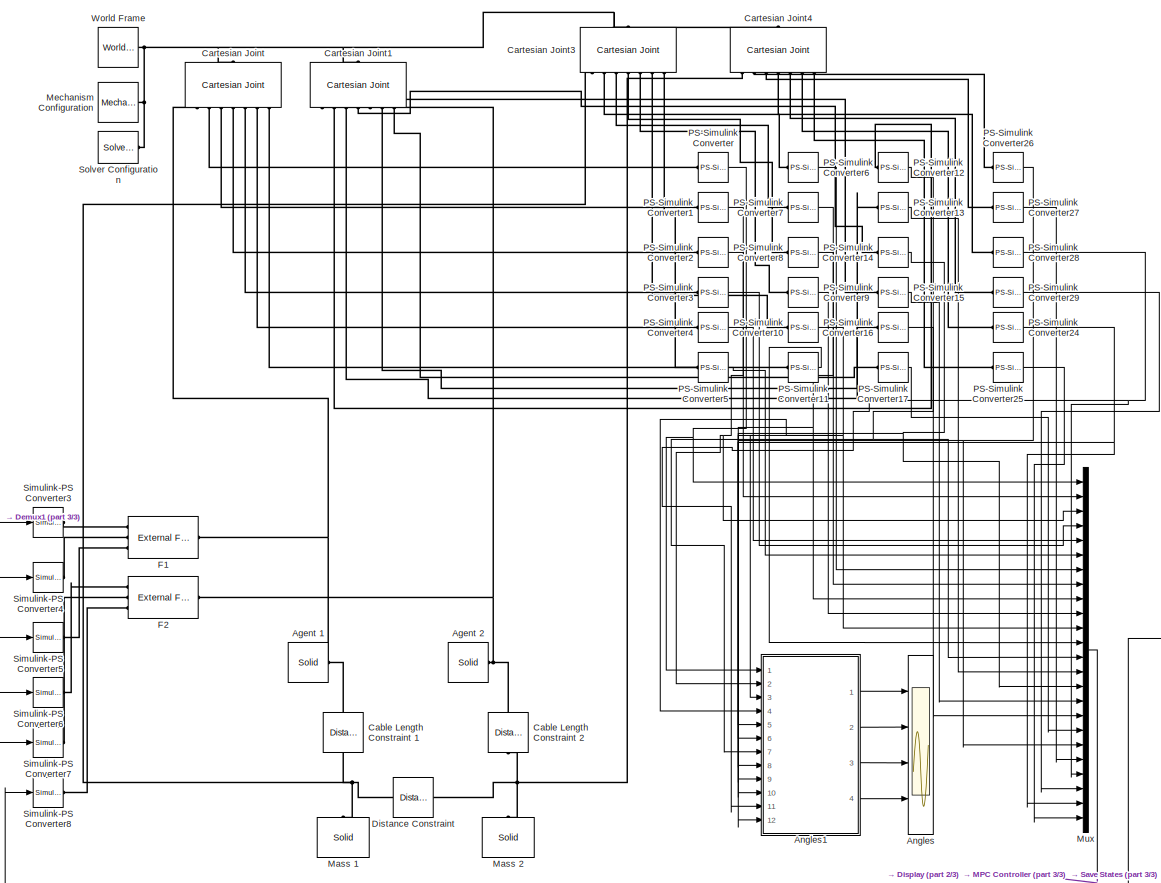
[diagram: root canvas - part 1/3, full width, middle band]
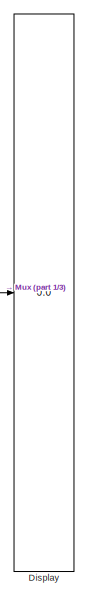
[diagram: root canvas - part 2/3, bottom right region]
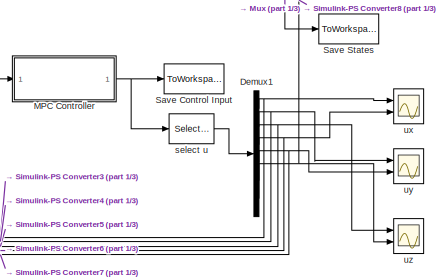
[diagram: root canvas - part 3/3, bottom center region]
MODEL slx_ee58ca1a40c8
KIND model
CONFIG AbsTol = auto
CONFIG EnableMultiTasking = on
CONFIG FixedStep = auto
CONFIG InitFcn = initSim;
CONFIG MaxStep = auto
CONFIG MinStep = auto
CONFIG RelTol = 1e-3
CONFIG SampleTimeConstraint = Unconstrained
CONFIG Solver = ode23t
CONFIG SolverName = ode23t
CONFIG StartTime = 0.0
CONFIG StopFcn = plotSimSolution;
CONFIG StopTime = 5
BLOCK [Reference] Agent 1  REF=sm_lib/Body Elements/Solid
  Ports = [0, 0, 0, 0, 0, 1]
  SourceBlock = sm_lib/Body Elements/Solid
  SourceProductBaseCode = MS
  SourceProductName = Simscape Multibody
  SourceType = Solid
BLOCK [Reference] Agent 2  REF=sm_lib/Body Elements/Solid
  Ports = [0, 0, 0, 0, 0, 1]
  SourceBlock = sm_lib/Body Elements/Solid
  SourceProductBaseCode = MS
  SourceProductName = Simscape Multibody
  SourceType = Solid
BLOCK [Scope] Angles
  NumInputPorts = 4
  Ports = [4]
  ScopeSpecificationString = Simulink.scopes.TimeScopeBlockCfg('CurrentConfiguration', extmgr.ConfigurationSet(extmgr.Configuration('Core','General UI',true),extmgr.Configuration('Core','Source UI',true),extmgr.Configuration('Sources','WiredSimulink',true,'DataLoggingVariableName','ScopeData4'),extmgr.Configuration('Visuals','Time Domain',true,'SerializedDisplays',{struct('MinYLimReal','-0.00000000000000042','MaxYLimReal','0....<+1512ch>
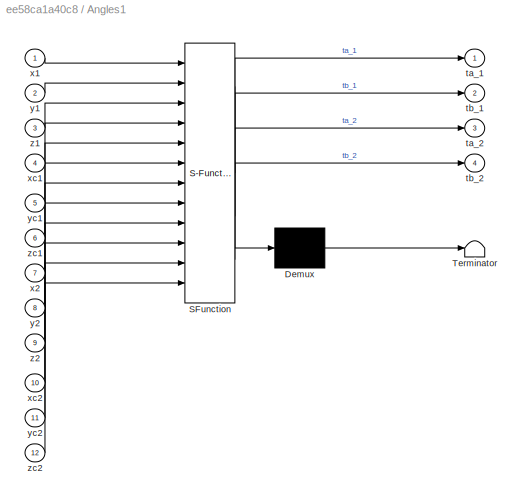
BLOCK [SubSystem] Angles1
  ErrorFcn = Stateflow.Translate.translate
  PermitHierarchicalResolution = ExplicitOnly
  Ports = [12, 4]
  RequestExecContextInheritance = off
  SFBlockType = MATLAB Function
  TreatAsAtomicUnit = on
  Variant = off
BLOCK [Demux] Angles1/ Demux 
  Outputs = 1
  Ports = [1, 1]
BLOCK [S-Function] Angles1/ SFunction 
  EnableBusSupport = on
  FunctionName = sf_sfun
  PortCounts = [12 5]
  Ports = [12, 5]
  SFcnIsStateOwnerBlock = off
  SFunctionDeploymentMode = off
  Tag = Stateflow S-Function MultiAgentMechanical2 1
BLOCK [Terminator] Angles1/ Terminator 
BLOCK [Outport] Angles1/ta_1
  IconDisplay = Port number
BLOCK [Outport] Angles1/ta_2
  IconDisplay = Port number
  Port = 3
BLOCK [Outport] Angles1/tb_1
  IconDisplay = Port number
  Port = 2
BLOCK [Outport] Angles1/tb_2
  IconDisplay = Port number
  Port = 4
BLOCK [Inport] Angles1/x1
  IconDisplay = Port number
BLOCK [Inport] Angles1/x2
  IconDisplay = Port number
  Port = 7
BLOCK [Inport] Angles1/xc1
  IconDisplay = Port number
  Port = 4
BLOCK [Inport] Angles1/xc2
  IconDisplay = Port number
  Port = 10
BLOCK [Inport] Angles1/y1
  IconDisplay = Port number
  Port = 2
BLOCK [Inport] Angles1/y2
  IconDisplay = Port number
  Port = 8
BLOCK [Inport] Angles1/yc1
  IconDisplay = Port number
  Port = 5
BLOCK [Inport] Angles1/yc2
  IconDisplay = Port number
  Port = 11
BLOCK [Inport] Angles1/z1
  IconDisplay = Port number
  Port = 3
BLOCK [Inport] Angles1/z2
  IconDisplay = Port number
  Port = 9
BLOCK [Inport] Angles1/zc1
  IconDisplay = Port number
  Port = 6
BLOCK [Inport] Angles1/zc2
  IconDisplay = Port number
  Port = 12
BLOCK [Reference] Cable Length Constraint 1  REF=sm_lib/Constraints/Distance
Constraint
  Ports = [0, 0, 0, 0, 0, 1, 1]
  SourceBlock = sm_lib/Constraints/Distance\nConstraint
  SourceProductBaseCode = MS
  SourceProductName = Simscape Multibody
  SourceType = Distance\nConstraint
BLOCK [Reference] Cable Length Constraint 2  REF=sm_lib/Constraints/Distance
Constraint
  Ports = [0, 0, 0, 0, 0, 1, 1]
  SourceBlock = sm_lib/Constraints/Distance\nConstraint
  SourceProductBaseCode = MS
  SourceProductName = Simscape Multibody
  SourceType = Distance\nConstraint
BLOCK [Reference] Cartesian Joint  REF=sm_lib/Joints/Cartesian
Joint
  Ports = [0, 0, 0, 0, 0, 1, 7]
  SourceBlock = sm_lib/Joints/Cartesian\nJoint
  SourceProductBaseCode = MS
  SourceProductName = Simscape Multibody
  SourceType = Cartesian\nJoint
BLOCK [Reference] Cartesian Joint1  REF=sm_lib/Joints/Cartesian
Joint
  Ports = [0, 0, 0, 0, 0, 1, 7]
  SourceBlock = sm_lib/Joints/Cartesian\nJoint
  SourceProductBaseCode = MS
  SourceProductName = Simscape Multibody
  SourceType = Cartesian\nJoint
BLOCK [Reference] Cartesian Joint3  REF=sm_lib/Joints/Cartesian
Joint
  Ports = [0, 0, 0, 0, 0, 1, 7]
  SourceBlock = sm_lib/Joints/Cartesian\nJoint
  SourceProductBaseCode = MS
  SourceProductName = Simscape Multibody
  SourceType = Cartesian\nJoint
BLOCK [Reference] Cartesian Joint4  REF=sm_lib/Joints/Cartesian
Joint
  Ports = [0, 0, 0, 0, 0, 1, 7]
  SourceBlock = sm_lib/Joints/Cartesian\nJoint
  SourceProductBaseCode = MS
  SourceProductName = Simscape Multibody
  SourceType = Cartesian\nJoint
BLOCK [Demux] Demux1
  DisplayOption = bar
  Outputs = 6
  Ports = [1, 6]
BLOCK [Display] Display
  Decimation = 1
  Ports = [1]
BLOCK [Reference] Distance Constraint  REF=sm_lib/Constraints/Distance
Constraint
  Ports = [0, 0, 0, 0, 0, 1, 1]
  SourceBlock = sm_lib/Constraints/Distance\nConstraint
  SourceProductBaseCode = MS
  SourceProductName = Simscape Multibody
  SourceType = Distance\nConstraint
BLOCK [Reference] F1  REF=sm_lib/Forces and
Torques/External Force
and Torque
  Ports = [0, 0, 0, 0, 0, 3, 1]
  SourceBlock = sm_lib/Forces and\nTorques/External Force\nand Torque
  SourceProductBaseCode = MS
  SourceProductName = Simscape Multibody
  SourceType = External Force\nand Torque
BLOCK [Reference] F2  REF=sm_lib/Forces and
Torques/External Force
and Torque
  Ports = [0, 0, 0, 0, 0, 3, 1]
  SourceBlock = sm_lib/Forces and\nTorques/External Force\nand Torque
  SourceProductBaseCode = MS
  SourceProductName = Simscape Multibody
  SourceType = External Force\nand Torque
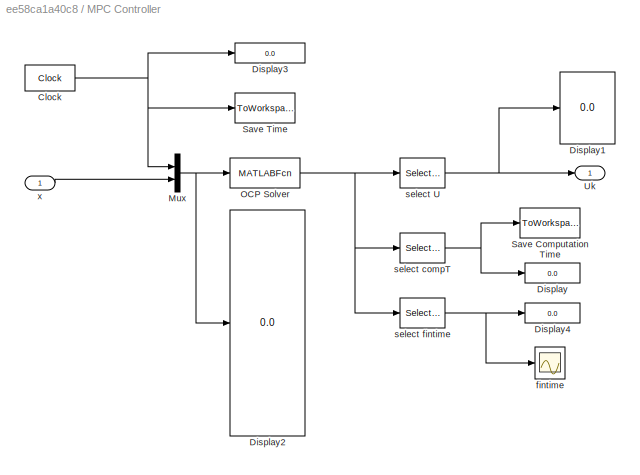
BLOCK [SubSystem] MPC Controller 
  Ports = [1, 1]
  RequestExecContextInheritance = off
  Variant = off
BLOCK [Clock] MPC Controller /Clock
  DisplayTime = on
BLOCK [Display] MPC Controller /Display
  Decimation = 1
  Ports = [1]
BLOCK [Display] MPC Controller /Display1
  Decimation = 1
  Ports = [1]
BLOCK [Display] MPC Controller /Display2
  Decimation = 1
  Ports = [1]
BLOCK [Display] MPC Controller /Display3
  Decimation = 1
  Ports = [1]
BLOCK [Display] MPC Controller /Display4
  Decimation = 1
  Ports = [1]
BLOCK [Mux] MPC Controller /Mux
  DisplayOption = bar
  Inputs = 2
  Ports = [2, 1]
BLOCK [MATLABFcn] MPC Controller /OCP Solver
  MATLABFcn = MAGSolver
  OutputDimensions = m+2
  Ports = [1, 1]
BLOCK [ToWorkspace] MPC Controller /Save Computation Time 
  FixptAsFi = on
  MaxDataPoints = inf
  Ports = [1]
  SampleTime = tstep
  Save2DSignal = 2-D array (concatenate along first dimension)
  VariableName = Comp_Time
BLOCK [ToWorkspace] MPC Controller /Save Time
  FixptAsFi = on
  MaxDataPoints = inf
  Ports = [1]
  SampleTime = -1
  Save2DSignal = 2-D array (concatenate along first dimension)
  VariableName = T
BLOCK [Outport] MPC Controller /Uk
  IconDisplay = Port number
BLOCK [Scope] MPC Controller /fintime
  NumInputPorts = 1
  Ports = [1]
  ScopeSpecificationString = Simulink.scopes.TimeScopeBlockCfg('CurrentConfiguration', extmgr.ConfigurationSet(extmgr.Configuration('Core','General UI',true),extmgr.Configuration('Core','Source UI',true),extmgr.Configuration('Sources','WiredSimulink',true,'DataLoggingVariableName','ScopeData1'),extmgr.Configuration('Visuals','Time Domain',true),extmgr.Configuration('Tools','Plot Navigation',true),extmgr.Configuration('Tools',...<+40ch>
BLOCK [Selector] MPC Controller /select U
  IndexOptions = Index vector (dialog)
  Indices = 3:m+2
  OutputSizes = 1
  Ports = [1, 1]
BLOCK [Selector] MPC Controller /select compT
  IndexOptions = Index vector (dialog)
  Indices = 2
  OutputSizes = 1
  Ports = [1, 1]
BLOCK [Selector] MPC Controller /select fintime
  IndexOptions = Index vector (dialog)
  Indices = 1
  OutputSizes = 1
  Ports = [1, 1]
BLOCK [Inport] MPC Controller /x
  IconDisplay = Port number
BLOCK [Reference] Mass 1  REF=sm_lib/Body Elements/Solid
  Ports = [0, 0, 0, 0, 0, 1]
  SourceBlock = sm_lib/Body Elements/Solid
  SourceProductBaseCode = MS
  SourceProductName = Simscape Multibody
  SourceType = Solid
BLOCK [Reference] Mass 2  REF=sm_lib/Body Elements/Solid
  Ports = [0, 0, 0, 0, 0, 1]
  SourceBlock = sm_lib/Body Elements/Solid
  SourceProductBaseCode = MS
  SourceProductName = Simscape Multibody
  SourceType = Solid
BLOCK [Reference] Mechanism Configuration  REF=sm_lib/Utilities/Mechanism
Configuration
  Ports = [0, 0, 0, 0, 0, 0, 1]
  SourceBlock = sm_lib/Utilities/Mechanism\nConfiguration
  SourceProductBaseCode = MS
  SourceProductName = Simscape Multibody
  SourceType = Mechanism\nConfiguration
BLOCK [Mux] Mux
  DisplayOption = bar
  Inputs = 24
  Ports = [24, 1]
BLOCK [Reference] PS-Simulink Converter  REF=nesl_utility/PS-Simulink
Converter
  Ports = [0, 1, 0, 0, 0, 1]
  SourceBlock = nesl_utility/PS-Simulink\nConverter
  SourceProductBaseCode = SS
  SourceProductName = Simscape
  SourceType = PS-Simulink\nConverter
BLOCK [Reference] PS-Simulink Converter1  REF=nesl_utility/PS-Simulink
Converter
  Ports = [0, 1, 0, 0, 0, 1]
  SourceBlock = nesl_utility/PS-Simulink\nConverter
  SourceProductBaseCode = SS
  SourceProductName = Simscape
  SourceType = PS-Simulink\nConverter
BLOCK [Reference] PS-Simulink Converter10  REF=nesl_utility/PS-Simulink
Converter
  Ports = [0, 1, 0, 0, 0, 1]
  SourceBlock = nesl_utility/PS-Simulink\nConverter
  SourceProductBaseCode = SS
  SourceProductName = Simscape
  SourceType = PS-Simulink\nConverter
BLOCK [Reference] PS-Simulink Converter11  REF=nesl_utility/PS-Simulink
Converter
  Ports = [0, 1, 0, 0, 0, 1]
  SourceBlock = nesl_utility/PS-Simulink\nConverter
  SourceProductBaseCode = SS
  SourceProductName = Simscape
  SourceType = PS-Simulink\nConverter
BLOCK [Reference] PS-Simulink Converter12  REF=nesl_utility/PS-Simulink
Converter
  Ports = [0, 1, 0, 0, 0, 1]
  SourceBlock = nesl_utility/PS-Simulink\nConverter
  SourceProductBaseCode = SS
  SourceProductName = Simscape
  SourceType = PS-Simulink\nConverter
BLOCK [Reference] PS-Simulink Converter13  REF=nesl_utility/PS-Simulink
Converter
  Ports = [0, 1, 0, 0, 0, 1]
  SourceBlock = nesl_utility/PS-Simulink\nConverter
  SourceProductBaseCode = SS
  SourceProductName = Simscape
  SourceType = PS-Simulink\nConverter
BLOCK [Reference] PS-Simulink Converter14  REF=nesl_utility/PS-Simulink
Converter
  Ports = [0, 1, 0, 0, 0, 1]
  SourceBlock = nesl_utility/PS-Simulink\nConverter
  SourceProductBaseCode = SS
  SourceProductName = Simscape
  SourceType = PS-Simulink\nConverter
BLOCK [Reference] PS-Simulink Converter15  REF=nesl_utility/PS-Simulink
Converter
  Ports = [0, 1, 0, 0, 0, 1]
  SourceBlock = nesl_utility/PS-Simulink\nConverter
  SourceProductBaseCode = SS
  SourceProductName = Simscape
  SourceType = PS-Simulink\nConverter
BLOCK [Reference] PS-Simulink Converter16  REF=nesl_utility/PS-Simulink
Converter
  Ports = [0, 1, 0, 0, 0, 1]
  SourceBlock = nesl_utility/PS-Simulink\nConverter
  SourceProductBaseCode = SS
  SourceProductName = Simscape
  SourceType = PS-Simulink\nConverter
BLOCK [Reference] PS-Simulink Converter17  REF=nesl_utility/PS-Simulink
Converter
  Ports = [0, 1, 0, 0, 0, 1]
  SourceBlock = nesl_utility/PS-Simulink\nConverter
  SourceProductBaseCode = SS
  SourceProductName = Simscape
  SourceType = PS-Simulink\nConverter
BLOCK [Reference] PS-Simulink Converter2  REF=nesl_utility/PS-Simulink
Converter
  Ports = [0, 1, 0, 0, 0, 1]
  SourceBlock = nesl_utility/PS-Simulink\nConverter
  SourceProductBaseCode = SS
  SourceProductName = Simscape
  SourceType = PS-Simulink\nConverter
BLOCK [Reference] PS-Simulink Converter24  REF=nesl_utility/PS-Simulink
Converter
  Ports = [0, 1, 0, 0, 0, 1]
  SourceBlock = nesl_utility/PS-Simulink\nConverter
  SourceProductBaseCode = SS
  SourceProductName = Simscape
  SourceType = PS-Simulink\nConverter
BLOCK [Reference] PS-Simulink Converter25  REF=nesl_utility/PS-Simulink
Converter
  Ports = [0, 1, 0, 0, 0, 1]
  SourceBlock = nesl_utility/PS-Simulink\nConverter
  SourceProductBaseCode = SS
  SourceProductName = Simscape
  SourceType = PS-Simulink\nConverter
BLOCK [Reference] PS-Simulink Converter26  REF=nesl_utility/PS-Simulink
Converter
  Ports = [0, 1, 0, 0, 0, 1]
  SourceBlock = nesl_utility/PS-Simulink\nConverter
  SourceProductBaseCode = SS
  SourceProductName = Simscape
  SourceType = PS-Simulink\nConverter
BLOCK [Reference] PS-Simulink Converter27  REF=nesl_utility/PS-Simulink
Converter
  Ports = [0, 1, 0, 0, 0, 1]
  SourceBlock = nesl_utility/PS-Simulink\nConverter
  SourceProductBaseCode = SS
  SourceProductName = Simscape
  SourceType = PS-Simulink\nConverter
BLOCK [Reference] PS-Simulink Converter28  REF=nesl_utility/PS-Simulink
Converter
  Ports = [0, 1, 0, 0, 0, 1]
  SourceBlock = nesl_utility/PS-Simulink\nConverter
  SourceProductBaseCode = SS
  SourceProductName = Simscape
  SourceType = PS-Simulink\nConverter
BLOCK [Reference] PS-Simulink Converter29  REF=nesl_utility/PS-Simulink
Converter
  Ports = [0, 1, 0, 0, 0, 1]
  SourceBlock = nesl_utility/PS-Simulink\nConverter
  SourceProductBaseCode = SS
  SourceProductName = Simscape
  SourceType = PS-Simulink\nConverter
BLOCK [Reference] PS-Simulink Converter3  REF=nesl_utility/PS-Simulink
Converter
  Ports = [0, 1, 0, 0, 0, 1]
  SourceBlock = nesl_utility/PS-Simulink\nConverter
  SourceProductBaseCode = SS
  SourceProductName = Simscape
  SourceType = PS-Simulink\nConverter
BLOCK [Reference] PS-Simulink Converter4  REF=nesl_utility/PS-Simulink
Converter
  Ports = [0, 1, 0, 0, 0, 1]
  SourceBlock = nesl_utility/PS-Simulink\nConverter
  SourceProductBaseCode = SS
  SourceProductName = Simscape
  SourceType = PS-Simulink\nConverter
BLOCK [Reference] PS-Simulink Converter5  REF=nesl_utility/PS-Simulink
Converter
  Ports = [0, 1, 0, 0, 0, 1]
  SourceBlock = nesl_utility/PS-Simulink\nConverter
  SourceProductBaseCode = SS
  SourceProductName = Simscape
  SourceType = PS-Simulink\nConverter
BLOCK [Reference] PS-Simulink Converter6  REF=nesl_utility/PS-Simulink
Converter
  Ports = [0, 1, 0, 0, 0, 1]
  SourceBlock = nesl_utility/PS-Simulink\nConverter
  SourceProductBaseCode = SS
  SourceProductName = Simscape
  SourceType = PS-Simulink\nConverter
BLOCK [Reference] PS-Simulink Converter7  REF=nesl_utility/PS-Simulink
Converter
  Ports = [0, 1, 0, 0, 0, 1]
  SourceBlock = nesl_utility/PS-Simulink\nConverter
  SourceProductBaseCode = SS
  SourceProductName = Simscape
  SourceType = PS-Simulink\nConverter
BLOCK [Reference] PS-Simulink Converter8  REF=nesl_utility/PS-Simulink
Converter
  Ports = [0, 1, 0, 0, 0, 1]
  SourceBlock = nesl_utility/PS-Simulink\nConverter
  SourceProductBaseCode = SS
  SourceProductName = Simscape
  SourceType = PS-Simulink\nConverter
BLOCK [Reference] PS-Simulink Converter9  REF=nesl_utility/PS-Simulink
Converter
  Ports = [0, 1, 0, 0, 0, 1]
  SourceBlock = nesl_utility/PS-Simulink\nConverter
  SourceProductBaseCode = SS
  SourceProductName = Simscape
  SourceType = PS-Simulink\nConverter
BLOCK [ToWorkspace] Save Control Input
  FixptAsFi = on
  MaxDataPoints = inf
  Ports = [1]
  SampleTime = -1
  Save2DSignal = 2-D array (concatenate along first dimension)
  VariableName = U
BLOCK [ToWorkspace] Save States
  FixptAsFi = on
  MaxDataPoints = inf
  Ports = [1]
  SampleTime = -1
  Save2DSignal = 3-D array (concatenate along third dimension)
  SaveFormat = Timeseries
  VariableName = X
BLOCK [Reference] Simulink-PS Converter3  REF=nesl_utility/Simulink-PS
Converter
  Ports = [1, 0, 0, 0, 0, 0, 1]
  SourceBlock = nesl_utility/Simulink-PS\nConverter
  SourceProductBaseCode = SS
  SourceProductName = Simscape
  SourceType = Simulink-PS\nConverter
BLOCK [Reference] Simulink-PS Converter4  REF=nesl_utility/Simulink-PS
Converter
  Ports = [1, 0, 0, 0, 0, 0, 1]
  SourceBlock = nesl_utility/Simulink-PS\nConverter
  SourceProductBaseCode = SS
  SourceProductName = Simscape
  SourceType = Simulink-PS\nConverter
BLOCK [Reference] Simulink-PS Converter5  REF=nesl_utility/Simulink-PS
Converter
  Ports = [1, 0, 0, 0, 0, 0, 1]
  SourceBlock = nesl_utility/Simulink-PS\nConverter
  SourceProductBaseCode = SS
  SourceProductName = Simscape
  SourceType = Simulink-PS\nConverter
BLOCK [Reference] Simulink-PS Converter6  REF=nesl_utility/Simulink-PS
Converter
  Ports = [1, 0, 0, 0, 0, 0, 1]
  SourceBlock = nesl_utility/Simulink-PS\nConverter
  SourceProductBaseCode = SS
  SourceProductName = Simscape
  SourceType = Simulink-PS\nConverter
BLOCK [Reference] Simulink-PS Converter7  REF=nesl_utility/Simulink-PS
Converter
  Ports = [1, 0, 0, 0, 0, 0, 1]
  SourceBlock = nesl_utility/Simulink-PS\nConverter
  SourceProductBaseCode = SS
  SourceProductName = Simscape
  SourceType = Simulink-PS\nConverter
BLOCK [Reference] Simulink-PS Converter8  REF=nesl_utility/Simulink-PS
Converter
  Ports = [1, 0, 0, 0, 0, 0, 1]
  SourceBlock = nesl_utility/Simulink-PS\nConverter
  SourceProductBaseCode = SS
  SourceProductName = Simscape
  SourceType = Simulink-PS\nConverter
BLOCK [Reference] Solver Configuration  REF=nesl_utility/Solver
Configuration
  Ports = [0, 0, 0, 0, 0, 0, 1]
  SourceBlock = nesl_utility/Solver\nConfiguration
  SourceProductBaseCode = SS
  SourceProductName = Simscape
  SourceType = Solver\nConfiguration
BLOCK [Reference] World Frame  REF=sm_lib/Frames and
Transforms/World Frame
  Ports = [0, 0, 0, 0, 0, 0, 1]
  SourceBlock = sm_lib/Frames and\nTransforms/World Frame
  SourceProductBaseCode = MS
  SourceProductName = Simscape Multibody
  SourceType = World Frame
BLOCK [Selector] select u
  IndexOptions = Index vector (dialog)
  Indices = [1:3,5:7]
  OutputSizes = 1
  Ports = [1, 1]
BLOCK [Scope] ux
  NumInputPorts = 2
  Ports = [2]
  ScopeSpecificationString = Simulink.scopes.TimeScopeBlockCfg('CurrentConfiguration', extmgr.ConfigurationSet(extmgr.Configuration('Core','General UI',true),extmgr.Configuration('Core','Source UI',true),extmgr.Configuration('Sources','WiredSimulink',true,'DataLoggingVariableName','ScopeData1'),extmgr.Configuration('Visuals','Time Domain',true,'SerializedDisplays',{struct('MinYLimReal','-1.11883','MaxYLimReal','8.95332','YLab...<+1473ch>
BLOCK [Scope] uy
  NumInputPorts = 2
  Ports = [2]
  ScopeSpecificationString = Simulink.scopes.TimeScopeBlockCfg('CurrentConfiguration', extmgr.ConfigurationSet(extmgr.Configuration('Core','General UI',true),extmgr.Configuration('Core','Source UI',true),extmgr.Configuration('Sources','WiredSimulink',true,'DataLoggingVariableName','ScopeData2'),extmgr.Configuration('Visuals','Time Domain',true,'SerializedDisplays',{struct('MinYLimReal','-1.11883','MaxYLimReal','8.95332','YLab...<+1473ch>
BLOCK [Scope] uz
  NumInputPorts = 2
  Ports = [2]
  ScopeSpecificationString = Simulink.scopes.TimeScopeBlockCfg('CurrentConfiguration', extmgr.ConfigurationSet(extmgr.Configuration('Core','General UI',true),extmgr.Configuration('Core','Source UI',true),extmgr.Configuration('Sources','WiredSimulink',true,'DataLoggingVariableName','ScopeData3'),extmgr.Configuration('Visuals','Time Domain',true,'SerializedDisplays',{struct('MinYLimReal','-1.11883','MaxYLimReal','8.95332','YLab...<+1473ch>
LINE Angles1:1 -> Angles:1
LINE Angles1:2 -> Angles:2
LINE Angles1:3 -> Angles:3
LINE Angles1:4 -> Angles:4
NET Demux1:1 -> Simulink-PS Converter3:1, ux:1
NET Demux1:2 -> Simulink-PS Converter4:1, uy:1
NET Demux1:3 -> Simulink-PS Converter5:1, uz:1
NET Demux1:4 -> Simulink-PS Converter6:1, ux:2
NET Demux1:5 -> Simulink-PS Converter7:1, uy:2
NET Demux1:6 -> Simulink-PS Converter8:1, uz:2
NET MPC Controller /Clock:1 -> MPC Controller /Display3:1, MPC Controller /Mux:1, MPC Controller /Save Time:1
NET MPC Controller /Mux:1 -> MPC Controller /Display2:1, MPC Controller /OCP Solver:1
NET MPC Controller /OCP Solver:1 -> MPC Controller /select U:1, MPC Controller /select compT:1, MPC Controller /select fintime:1
NET MPC Controller /select U:1 -> MPC Controller /Display1:1, MPC Controller /Uk:1
NET MPC Controller /select compT:1 -> MPC Controller /Display:1, MPC Controller /Save Computation Time :1
NET MPC Controller /select fintime:1 -> MPC Controller /Display4:1, MPC Controller /fintime:1
LINE MPC Controller /x:1 -> MPC Controller /Mux:2
NET MPC Controller :1 -> Save Control Input:1, select u:1
NET Mux:1 -> Display:1, MPC Controller :1, Save States:1
NET PS-Simulink Converter10:1 -> Angles1:6, Mux:11
LINE PS-Simulink Converter11:1 -> Mux:12
NET PS-Simulink Converter12:1 -> Angles1:7, Mux:13
LINE PS-Simulink Converter13:1 -> Mux:14
NET PS-Simulink Converter14:1 -> Angles1:8, Mux:15
LINE PS-Simulink Converter15:1 -> Mux:16
NET PS-Simulink Converter16:1 -> Angles1:9, Mux:17
LINE PS-Simulink Converter17:1 -> Mux:18
LINE PS-Simulink Converter1:1 -> Mux:2
NET PS-Simulink Converter24:1 -> Angles1:12, Mux:23
LINE PS-Simulink Converter25:1 -> Mux:24
NET PS-Simulink Converter26:1 -> Angles1:10, Mux:19
LINE PS-Simulink Converter27:1 -> Mux:20
NET PS-Simulink Converter28:1 -> Angles1:11, Mux:21
LINE PS-Simulink Converter29:1 -> Mux:22
NET PS-Simulink Converter2:1 -> Angles1:2, Mux:3
LINE PS-Simulink Converter3:1 -> Mux:4
NET PS-Simulink Converter4:1 -> Angles1:3, Mux:5
LINE PS-Simulink Converter5:1 -> Mux:6
NET PS-Simulink Converter6:1 -> Angles1:4, Mux:7
LINE PS-Simulink Converter7:1 -> Mux:8
NET PS-Simulink Converter8:1 -> Angles1:5, Mux:9
LINE PS-Simulink Converter9:1 -> Mux:10
NET PS-Simulink Converter:1 -> Angles1:1, Mux:1
LINE select u:1 -> Demux1:1
PNET net1: Agent 1:LConn1 -- Cable Length Constraint 1:LConn1 -- Cartesian Joint:RConn1 -- F1:RConn1
PNET net2: Agent 2:LConn1 -- Cable Length Constraint 2:LConn1 -- Cartesian Joint1:RConn1 -- F2:RConn1
PNET net3: Cable Length Constraint 1:RConn1 -- Cartesian Joint3:RConn1 -- Distance Constraint:LConn1 -- Mass 1:LConn1
PNET net4: Cable Length Constraint 2:RConn1 -- Cartesian Joint4:RConn1 -- Distance Constraint:RConn1 -- Mass 2:LConn1
PNET net5: Cartesian Joint1:LConn1 -- Cartesian Joint3:LConn1 -- Cartesian Joint4:LConn1 -- Cartesian Joint:LConn1 -- Mechanism Configuration:RConn1 -- Solver Configuration:RConn1 -- World Frame:RConn1
PLINE Cartesian Joint1:RConn2 -- PS-Simulink Converter12:LConn1
PLINE Cartesian Joint1:RConn3 -- PS-Simulink Converter13:LConn1
PLINE Cartesian Joint1:RConn4 -- PS-Simulink Converter14:LConn1
PLINE Cartesian Joint1:RConn5 -- PS-Simulink Converter15:LConn1
PLINE Cartesian Joint1:RConn6 -- PS-Simulink Converter16:LConn1
PLINE Cartesian Joint1:RConn7 -- PS-Simulink Converter17:LConn1
PLINE Cartesian Joint3:RConn2 -- PS-Simulink Converter6:LConn1
PLINE Cartesian Joint3:RConn3 -- PS-Simulink Converter7:LConn1
PLINE Cartesian Joint3:RConn4 -- PS-Simulink Converter8:LConn1
PLINE Cartesian Joint3:RConn5 -- PS-Simulink Converter9:LConn1
PLINE Cartesian Joint3:RConn6 -- PS-Simulink Converter10:LConn1
PLINE Cartesian Joint3:RConn7 -- PS-Simulink Converter11:LConn1
PLINE Cartesian Joint4:RConn2 -- PS-Simulink Converter26:LConn1
PLINE Cartesian Joint4:RConn3 -- PS-Simulink Converter27:LConn1
PLINE Cartesian Joint4:RConn4 -- PS-Simulink Converter28:LConn1
PLINE Cartesian Joint4:RConn5 -- PS-Simulink Converter29:LConn1
PLINE Cartesian Joint4:RConn6 -- PS-Simulink Converter24:LConn1
PLINE Cartesian Joint4:RConn7 -- PS-Simulink Converter25:LConn1
PLINE Cartesian Joint:RConn2 -- PS-Simulink Converter:LConn1
PLINE Cartesian Joint:RConn3 -- PS-Simulink Converter1:LConn1
PLINE Cartesian Joint:RConn4 -- PS-Simulink Converter2:LConn1
PLINE Cartesian Joint:RConn5 -- PS-Simulink Converter3:LConn1
PLINE Cartesian Joint:RConn6 -- PS-Simulink Converter4:LConn1
PLINE Cartesian Joint:RConn7 -- PS-Simulink Converter5:LConn1
PLINE F1:LConn1 -- Simulink-PS Converter3:RConn1
PLINE F1:LConn2 -- Simulink-PS Converter4:RConn1
PLINE F1:LConn3 -- Simulink-PS Converter5:RConn1
PLINE F2:LConn1 -- Simulink-PS Converter6:RConn1
PLINE F2:LConn2 -- Simulink-PS Converter7:RConn1
PLINE F2:LConn3 -- Simulink-PS Converter8:RConn1
note: NET lines group one-source signal fan-out (src -> all destinations, sorted); 1:1 wires keep LINE; PNET lines group multi-terminal physical nets as a canonical sorted terminal list (undirected conserving connections); 2-terminal nets keep the pairwise PLINE form
CHART Angles1 states=1 transitions=1
  STATE_LABEL 'eML_blk_kernel()'
  STATE_LABEL 'SCRIPT:\nfunction [ta_1,tb_1,ta_2,tb_2] = updateAngles(x1,y1,z1,xc1,yc1,zc1,x2,y2,z2,xc2,yc2,zc2)\n\nta_1 = (x1-xc1)/(z1-zc1);\ntb_1 = (y1-yc1)/(z1-zc1);\nta_2 = (x2-xc2)/(z2-zc2);\ntb_2 = (y2-yc2)/(z2-zc2);'
